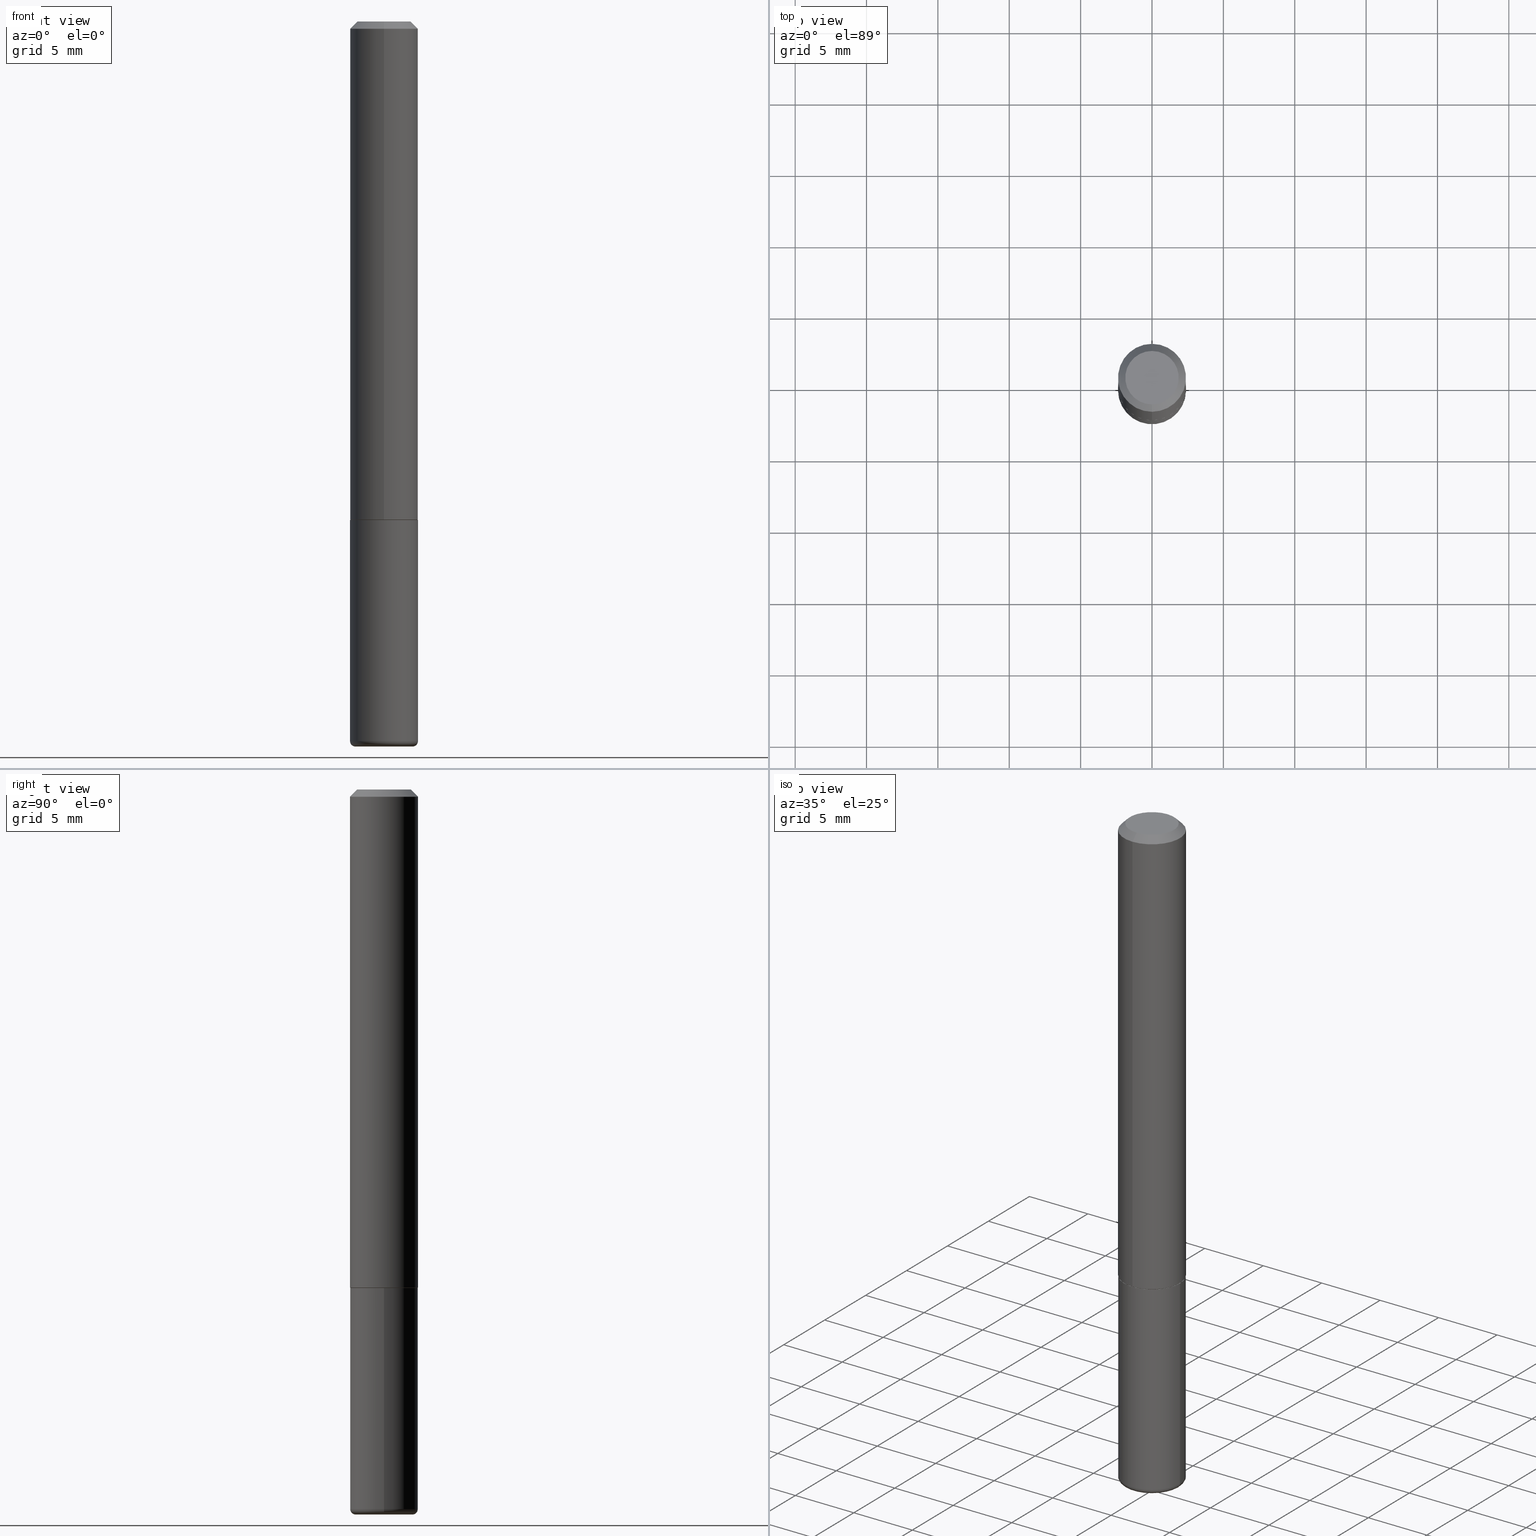
[diagram: canonical four-view strip — front | top / right | iso, engineering-drawing reading convention]
A machine part, canonical four-view strip (front | top / right | iso — engineering-drawing reading convention). The complete STEP part file that produces these views, byte-faithful:
ISO-10303-21;
HEADER;
FILE_DESCRIPTION (( 'STEP AP203' ),
    '1' );
FILE_NAME ('38209.STEP',
    '2024-03-02T18:19:08',
    ( '' ),
    ( '' ),
    'SwSTEP 2.0',
    'SolidWorks 2023',
    '' );
FILE_SCHEMA (( 'CONFIG_CONTROL_DESIGN' ));
ENDSEC;

DATA;
#1 = CARTESIAN_POINT ( 'NONE',  ( 3.362826918638701367E-29, -4.800346755306231649E-15, -1.375000000000000000 ) ) ;
#2 = DIRECTION ( 'NONE',  ( 2.445692304464510391E-29, -3.491161276586350254E-15, -1.000000000000000000 ) ) ;
#3 = CC_DESIGN_PERSON_AND_ORGANIZATION_ASSIGNMENT ( #154, #246, ( #200 ) ) ;
#4 = CARTESIAN_POINT ( 'NONE',  ( -6.546527510330881944E-16, -0.09375000000000011102, 3.272963696799707431E-16 ) ) ;
#5 = CIRCLE ( 'NONE', #244, 0.09375000000000019429 ) ;
#6 = AXIS2_PLACEMENT_3D ( 'NONE', #233, #351, #256 ) ;
#7 = ORIENTED_EDGE ( 'NONE', *, *, #334, .T. ) ;
#8 =( CONVERSION_BASED_UNIT ( 'INCH', #411 ) LENGTH_UNIT ( ) NAMED_UNIT ( #325 ) );
#9 = ADVANCED_BREP_SHAPE_REPRESENTATION ( '38209', ( #185, #39, #406 ), #196 ) ;
#10 = ORIENTED_EDGE ( 'NONE', *, *, #79, .T. ) ;
#11 = CC_DESIGN_PERSON_AND_ORGANIZATION_ASSIGNMENT ( #126, #229, ( #176 ) ) ;
#12 = CALENDAR_DATE ( 2024, 2, 3 ) ;
#13 = PERSON_AND_ORGANIZATION_ROLE ( 'design_owner' ) ;
#14 = CIRCLE ( 'NONE', #31, 0.09375000000000001388 ) ;
#15 = ORIENTED_EDGE ( 'NONE', *, *, #61, .T. ) ;
#16 = VERTEX_POINT ( 'NONE', #394 ) ;
#17 = COORDINATED_UNIVERSAL_TIME_OFFSET ( 5, 0, .BEHIND. ) ;
#18 = EDGE_LOOP ( 'NONE', ( #121, #321, #403, #155 ) ) ;
#19 = CARTESIAN_POINT ( 'NONE',  ( 0.000000000000000000, 0.000000000000000000, 0.000000000000000000 ) ) ;
#20 = CIRCLE ( 'NONE', #88, 0.07875000000000001443 ) ;
#21 = ORGANIZATION ( 'UNSPECIFIED', 'UNSPECIFIED', '' ) ;
#22 = PLANE ( 'NONE',  #279 ) ;
#23 = FACE_OUTER_BOUND ( 'NONE', #298, .T. ) ;
#24 = CARTESIAN_POINT ( 'NONE',  ( 3.362519608504562260E-29, -4.800786840909324930E-15, -1.375000000000000000 ) ) ;
#25 = DIRECTION ( 'NONE',  ( -6.982962677686265922E-15, -1.000000000000000000, 3.505871591869136910E-15 ) ) ;
#26 = ADVANCED_FACE ( 'NONE', ( #305 ), #22, .F. ) ;
#27 = PERSON_AND_ORGANIZATION_ROLE ( 'design_supplier' ) ;
#28 = CARTESIAN_POINT ( 'NONE',  ( 0.09374999999999991673, -7.585243208636731985E-15, -1.985000000000000098 ) ) ;
#29 = CC_DESIGN_PERSON_AND_ORGANIZATION_ASSIGNMENT ( #50, #13, ( #112 ) ) ;
#30 = DIRECTION ( 'NONE',  ( 7.105427357601001859E-15, 1.000000000000000000, -3.491481338843145583E-15 ) ) ;
#31 = AXIS2_PLACEMENT_3D ( 'NONE', #288, #379, #285 ) ;
#32 = DIRECTION ( 'NONE',  ( -2.445692304464510391E-29, 3.491161276586350254E-15, 1.000000000000000000 ) ) ;
#33 = VERTEX_POINT ( 'NONE', #91 ) ;
#34 = DATE_AND_TIME ( #12, #274 ) ;
#35 = CARTESIAN_POINT ( 'NONE',  ( 1.879681562415174393E-45, -2.683195866887273789E-31, -7.685682941324603213E-17 ) ) ;
#36 = CYLINDRICAL_SURFACE ( 'NONE', #320, 0.09375000000000001388 ) ;
#37 = EDGE_CURVE ( 'NONE', #343, #120, #296, .T. ) ;
#38 = FACE_OUTER_BOUND ( 'NONE', #111, .T. ) ;
#39 = MANIFOLD_SOLID_BREP ( 'Body-Move/Copy2[2]', #175 ) ;
#40 = APPROVAL_PERSON_ORGANIZATION ( #42, #174, #338 ) ;
#41 = EDGE_CURVE ( 'NONE', #132, #124, #387, .T. ) ;
#42 = PERSON_AND_ORGANIZATION ( #259, #21 ) ;
#43 = EDGE_CURVE ( 'NONE', #347, #269, #122, .T. ) ;
#44 = DIRECTION ( 'NONE',  ( -2.445468806185136877E-29, 3.491481338843145188E-15, 1.000000000000000000 ) ) ;
#45 = EDGE_LOOP ( 'NONE', ( #330, #56, #212, #294 ) ) ;
#46 = PRODUCT_DEFINITION_SHAPE ( 'NONE', 'NONE',  #200 ) ;
#47 = PRODUCT_DEFINITION_FORMATION_WITH_SPECIFIED_SOURCE ( 'ANY', '', #112, .NOT_KNOWN. ) ;
#48 = DIRECTION ( 'NONE',  ( -2.445692304464510111E-29, 3.491161276586350254E-15, 1.000000000000000000 ) ) ;
#49 = ADVANCED_FACE ( 'NONE', ( #136 ), #410, .T. ) ;
#50 = PERSON_AND_ORGANIZATION ( #259, #21 ) ;
#51 = FACE_OUTER_BOUND ( 'NONE', #218, .T. ) ;
#52 = LOCAL_TIME ( 13, 19, 8.000000000000000000, #377 ) ;
#53 = ORIENTED_EDGE ( 'NONE', *, *, #399, .T. ) ;
#54 = APPROVAL_STATUS ( 'not_yet_approved' ) ;
#55 = EDGE_CURVE ( 'NONE', #186, #192, #166, .T. ) ;
#56 = ORIENTED_EDGE ( 'NONE', *, *, #105, .T. ) ;
#57 = ORIENTED_EDGE ( 'NONE', *, *, #55, .F. ) ;
#58 = CALENDAR_DATE ( 2024, 2, 3 ) ;
#59 = DIRECTION ( 'NONE',  ( -2.445692304464510391E-29, 3.491161276586350254E-15, 1.000000000000000000 ) ) ;
#60 = CARTESIAN_POINT ( 'NONE',  ( 4.891384608929025126E-31, -6.982322553172705093E-17, -0.02000000000000001776 ) ) ;
#61 = EDGE_CURVE ( 'NONE', #202, #280, #80, .T. ) ;
#62 = CARTESIAN_POINT ( 'NONE',  ( 6.661338147750946145E-16, 0.09375000000000011102, -3.272963696799707431E-16 ) ) ;
#63 = DIRECTION ( 'NONE',  ( -2.445692304464510391E-29, 3.491161276586350254E-15, 1.000000000000000000 ) ) ;
#64 = ORIENTED_EDGE ( 'NONE', *, *, #213, .T. ) ;
#65 = LINE ( 'NONE', #385, #144 ) ;
#66 = CONICAL_SURFACE ( 'NONE', #150, 0.09375000000000002776, 0.7853981633974471688 ) ;
#67 = CARTESIAN_POINT ( 'NONE',  ( 1.879681562415174393E-45, -2.683195866887273789E-31, -7.685682941324603213E-17 ) ) ;
#68 = FACE_OUTER_BOUND ( 'NONE', #103, .T. ) ;
#69 = PERSON_AND_ORGANIZATION ( #259, #21 ) ;
#70 = DIRECTION ( 'NONE',  ( 1.000000000000000000, -6.982962677686277755E-15, 0.000000000000000000 ) ) ;
#71 = EDGE_CURVE ( 'NONE', #395, #16, #20, .T. ) ;
#72 = TOROIDAL_SURFACE ( 'NONE', #301, 0.07875000000000001443, 0.01499999999999984852 ) ;
#73 = EDGE_CURVE ( 'NONE', #280, #202, #130, .T. ) ;
#74 = DIRECTION ( 'NONE',  ( 1.000000000000000000, 0.000000000000000000, 0.000000000000000000 ) ) ;
#75 = APPROVAL_STATUS ( 'not_yet_approved' ) ;
#76 = ORIENTED_EDGE ( 'NONE', *, *, #73, .T. ) ;
#77 = APPROVAL_DATE_TIME ( #34, #174 ) ;
#78 = ORIENTED_EDGE ( 'NONE', *, *, #191, .T. ) ;
#79 = EDGE_CURVE ( 'NONE', #124, #132, #307, .T. ) ;
#80 = CIRCLE ( 'NONE', #350, 0.07375000000000013489 ) ;
#81 = LOCAL_TIME ( 13, 19, 8.000000000000000000, #17 ) ;
#82 = PLANE ( 'NONE',  #110 ) ;
#83 = PERSON_AND_ORGANIZATION ( #259, #21 ) ;
#84 = ORIENTED_EDGE ( 'NONE', *, *, #237, .F. ) ;
#85 = DIRECTION ( 'NONE',  ( 6.982962677686265922E-15, 1.000000000000000000, -3.491161276586350254E-15 ) ) ;
#86 = DATE_TIME_ROLE ( 'creation_date' ) ;
#87 = COORDINATED_UNIVERSAL_TIME_OFFSET ( 5, 0, .BEHIND. ) ;
#88 = AXIS2_PLACEMENT_3D ( 'NONE', #102, #170, #378 ) ;
#89 = AXIS2_PLACEMENT_3D ( 'NONE', #214, #142, #249 ) ;
#90 = DIRECTION ( 'NONE',  ( -2.445468806185136877E-29, 3.491481338843145188E-15, 1.000000000000000000 ) ) ;
#91 = CARTESIAN_POINT ( 'NONE',  ( -6.546527510330552594E-16, -0.09375000000000499600, -1.373999999999999666 ) ) ;
#92 =( LENGTH_UNIT ( ) NAMED_UNIT ( * ) SI_UNIT ( $, .METRE. ) );
#93 =( NAMED_UNIT ( * ) SI_UNIT ( $, .STERADIAN. ) SOLID_ANGLE_UNIT ( ) );
#94 = ORIENTED_EDGE ( 'NONE', *, *, #205, .T. ) ;
#95 = LINE ( 'NONE', #194, #398 ) ;
#96 = APPLICATION_CONTEXT ( 'configuration controlled 3d designs of mechanical parts and assemblies' ) ;
#97 = CARTESIAN_POINT ( 'NONE',  ( 4.854255580277496436E-29, -6.930590457603643692E-15, -1.985000000000000098 ) ) ;
#98 = ORIENTED_EDGE ( 'NONE', *, *, #37, .T. ) ;
#99 = CC_DESIGN_APPROVAL ( #174, ( #176 ) ) ;
#100 = CYLINDRICAL_SURFACE ( 'NONE', #123, 0.09375000000000001388 ) ;
#101 = EDGE_LOOP ( 'NONE', ( #156, #277, #53, #179 ) ) ;
#102 = CARTESIAN_POINT ( 'NONE',  ( 4.890937612370272633E-29, -6.982962677686290376E-15, -1.999999999999999778 ) ) ;
#103 = EDGE_LOOP ( 'NONE', ( #84, #199, #114, #375 ) ) ;
#104 = CARTESIAN_POINT ( 'NONE',  ( 0.000000000000000000, 0.000000000000000000, 0.000000000000000000 ) ) ;
#105 = EDGE_CURVE ( 'NONE', #395, #120, #319, .T. ) ;
#106 = AXIS2_PLACEMENT_3D ( 'NONE', #104, #163, #204 ) ;
#107 = CONICAL_SURFACE ( 'NONE', #219, 0.09274999999999999911, 0.7853981633975080090 ) ;
#108 = DIRECTION ( 'NONE',  ( -2.445468806185136597E-29, 3.491481338843145583E-15, 1.000000000000000000 ) ) ;
#109 = EDGE_CURVE ( 'NONE', #120, #343, #217, .T. ) ;
#110 = AXIS2_PLACEMENT_3D ( 'NONE', #306, #184, #85 ) ;
#111 = EDGE_LOOP ( 'NONE', ( #98, #317, #414, #221 ) ) ;
#112 = PRODUCT ( '38209', '38209', '', ( #400 ) ) ;
#113 = LINE ( 'NONE', #117, #360 ) ;
#114 = ORIENTED_EDGE ( 'NONE', *, *, #290, .T. ) ;
#115 = DIRECTION ( 'NONE',  ( 1.000000000000000000, -6.982962677686263555E-15, 4.883557194083111219E-29 ) ) ;
#116 = ADVANCED_FACE ( 'NONE', ( #323 ), #208, .T. ) ;
#117 = CARTESIAN_POINT ( 'NONE',  ( 0.09375000000000001388, -6.546527510330875041E-16, 4.571415727308690506E-30 ) ) ;
#118 = CC_DESIGN_APPROVAL ( #119, ( #200 ) ) ;
#119 = APPROVAL ( #337, 'UNSPECIFIED' ) ;
#120 = VERTEX_POINT ( 'NONE', #224 ) ;
#121 = ORIENTED_EDGE ( 'NONE', *, *, #183, .F. ) ;
#122 = CIRCLE ( 'NONE', #264, 0.09375000000000001388 ) ;
#123 = AXIS2_PLACEMENT_3D ( 'NONE', #206, #198, #324 ) ;
#124 = VERTEX_POINT ( 'NONE', #289 ) ;
#125 = DIRECTION ( 'NONE',  ( -6.982962677686265922E-15, -1.000000000000000000, 2.945388672414299892E-15 ) ) ;
#126 = PERSON_AND_ORGANIZATION ( #259, #21 ) ;
#127 = LINE ( 'NONE', #62, #340 ) ;
#128 = ORIENTED_EDGE ( 'NONE', *, *, #151, .F. ) ;
#129 = DIRECTION ( 'NONE',  ( 6.982962677686265922E-15, 1.000000000000000000, -3.505871591869136910E-15 ) ) ;
#130 = CIRCLE ( 'NONE', #367, 0.07375000000000013489 ) ;
#131 = CARTESIAN_POINT ( 'NONE',  ( 4.891384608929025126E-31, -6.982322553172705093E-17, -0.02000000000000001776 ) ) ;
#132 = VERTEX_POINT ( 'NONE', #230 ) ;
#133 = DIRECTION ( 'NONE',  ( -6.982962677686265922E-15, -1.000000000000000000, 3.491161276586350254E-15 ) ) ;
#134 = LINE ( 'NONE', #211, #271 ) ;
#135 = CARTESIAN_POINT ( 'NONE',  ( -5.745667073133659498E-16, -0.07375000000000013489, 1.806163147349977463E-16 ) ) ;
#136 = FACE_OUTER_BOUND ( 'NONE', #273, .T. ) ;
#137 = AXIS2_PLACEMENT_3D ( 'NONE', #141, #329, #299 ) ;
#138 = DIRECTION ( 'NONE',  ( 0.000000000000000000, 0.000000000000000000, 1.000000000000000000 ) ) ;
#139 = CARTESIAN_POINT ( 'NONE',  ( 9.735735728146696182E-29, -4.493602711038002427E-17, -2.000000000000000000 ) ) ;
#140 = ADVANCED_FACE ( 'NONE', ( #201 ), #66, .T. ) ;
#141 = CARTESIAN_POINT ( 'NONE',  ( 3.362826918638701367E-29, -4.800346755306231649E-15, -1.375000000000000000 ) ) ;
#142 = DIRECTION ( 'NONE',  ( -2.445692304464510391E-29, 3.491161276586350254E-15, 1.000000000000000000 ) ) ;
#143 = DESIGN_CONTEXT ( 'detailed design', #96, 'design' ) ;
#144 = VECTOR ( 'NONE', #355, 39.37007874015748143 ) ;
#145 = ORIENTED_EDGE ( 'NONE', *, *, #334, .F. ) ;
#146 = DIRECTION ( 'NONE',  ( 1.000000000000000000, -6.982962677686263555E-15, 4.883557194083111219E-29 ) ) ;
#147 = DIRECTION ( 'NONE',  ( -4.937700262164843076E-15, -0.7071067811865873187, 0.7071067811865077157 ) ) ;
#148 = DIRECTION ( 'NONE',  ( -2.445468806185136597E-29, 3.491481338843145583E-15, 1.000000000000000000 ) ) ;
#149 = AXIS2_PLACEMENT_3D ( 'NONE', #131, #227, #353 ) ;
#150 = AXIS2_PLACEMENT_3D ( 'NONE', #386, #2, #129 ) ;
#151 = EDGE_CURVE ( 'NONE', #16, #395, #209, .T. ) ;
#152 = DIRECTION ( 'NONE',  ( -6.982962677686265922E-15, -1.000000000000000000, 3.491161276586350254E-15 ) ) ;
#153 = DIRECTION ( 'NONE',  ( -1.000000000000000000, 6.982962677686265922E-15, -4.876176775795935793E-29 ) ) ;
#154 = PERSON_AND_ORGANIZATION ( #259, #21 ) ;
#155 = ORIENTED_EDGE ( 'NONE', *, *, #245, .F. ) ;
#156 = ORIENTED_EDGE ( 'NONE', *, *, #105, .F. ) ;
#157 = EDGE_CURVE ( 'NONE', #269, #347, #14, .T. ) ;
#158 = DIRECTION ( 'NONE',  ( -6.982962677686265922E-15, -1.000000000000000000, 3.491161276586350648E-15 ) ) ;
#159 = TOROIDAL_SURFACE ( 'NONE', #203, 0.07875000000000001443, 0.01499999999999984852 ) ;
#160 = CARTESIAN_POINT ( 'NONE',  ( 5.848231242562254878E-16, 0.07375000000000013489, -3.343299735614898105E-16 ) ) ;
#161 = SECURITY_CLASSIFICATION_LEVEL ( 'unclassified' ) ;
#162 = DIRECTION ( 'NONE',  ( -2.445692304464510391E-29, 3.491161276586350254E-15, 1.000000000000000000 ) ) ;
#163 = DIRECTION ( 'NONE',  ( -2.445692304464510391E-29, 3.491161276586350254E-15, 1.000000000000000000 ) ) ;
#164 = DATE_AND_TIME ( #253, #225 ) ;
#165 = DIRECTION ( 'NONE',  ( -1.000000000000000000, 7.105427357601001859E-15, 0.000000000000000000 ) ) ;
#166 = CIRCLE ( 'NONE', #358, 0.09274999999999999911 ) ;
#167 = CIRCLE ( 'NONE', #137, 0.09274999999999999911 ) ;
#168 = ADVANCED_FACE ( 'NONE', ( #68 ), #100, .T. ) ;
#169 = DIRECTION ( 'NONE',  ( -2.445468806185136597E-29, 3.491481338843145583E-15, 1.000000000000000000 ) ) ;
#170 = DIRECTION ( 'NONE',  ( -2.445468806185136597E-29, 3.491481338843145583E-15, 1.000000000000000000 ) ) ;
#171 = CARTESIAN_POINT ( 'NONE',  ( 0.000000000000000000, 0.000000000000000000, 0.000000000000000000 ) ) ;
#172 = DIRECTION ( 'NONE',  ( 2.438088387897960049E-29, -3.491481338843145188E-15, -1.000000000000000000 ) ) ;
#173 = CARTESIAN_POINT ( 'NONE',  ( -0.07875000000000001443, -6.343933458051881854E-15, -1.999999999999999778 ) ) ;
#174 = APPROVAL ( #75, 'UNSPECIFIED' ) ;
#175 = CLOSED_SHELL ( 'NONE', ( #335, #49, #116, #140, #322, #310, #26, #415 ) ) ;
#176 = SECURITY_CLASSIFICATION ( '', '', #161 ) ;
#177 = DIRECTION ( 'NONE',  ( 2.438088387897960049E-29, -3.491481338843145188E-15, -1.000000000000000000 ) ) ;
#178 = DIRECTION ( 'NONE',  ( -2.445692304464510391E-29, 3.491161276586350254E-15, 1.000000000000000000 ) ) ;
#179 = ORIENTED_EDGE ( 'NONE', *, *, #109, .F. ) ;
#180 = ORIENTED_EDGE ( 'NONE', *, *, #79, .F. ) ;
#181 = PLANE ( 'NONE',  #232 ) ;
#182 = FACE_OUTER_BOUND ( 'NONE', #18, .T. ) ;
#183 = EDGE_CURVE ( 'NONE', #186, #314, #316, .T. ) ;
#184 = DIRECTION ( 'NONE',  ( 2.445692304464510111E-29, -3.491161276586350254E-15, -1.000000000000000000 ) ) ;
#185 = MANIFOLD_SOLID_BREP ( 'Body-Move/Copy2[1]', #195 ) ;
#186 = VERTEX_POINT ( 'NONE', #260 ) ;
#187 = APPROVAL_ROLE ( '' ) ;
#188 = ORIENTED_EDGE ( 'NONE', *, *, #205, .F. ) ;
#189 = CYLINDRICAL_SURFACE ( 'NONE', #333, 0.09375000000000011102 ) ;
#190 = DIRECTION ( 'NONE',  ( -6.982962677686266711E-15, -1.000000000000000000, 2.913971193241874850E-15 ) ) ;
#191 = EDGE_CURVE ( 'NONE', #202, #132, #65, .T. ) ;
#192 = VERTEX_POINT ( 'NONE', #318 ) ;
#193 = DATE_AND_TIME ( #58, #81 ) ;
#194 = CARTESIAN_POINT ( 'NONE',  ( -6.431716872910806895E-16, -0.09375000000000009714, -0.01999999999999968817 ) ) ;
#195 = CLOSED_SHELL ( 'NONE', ( #389, #409, #255, #168, #242, #369 ) ) ;
#196 =( GEOMETRIC_REPRESENTATION_CONTEXT ( 3 ) GLOBAL_UNCERTAINTY_ASSIGNED_CONTEXT ( ( #226 ) ) GLOBAL_UNIT_ASSIGNED_CONTEXT ( ( #8, #241, #93 ) ) REPRESENTATION_CONTEXT ( 'NONE', 'WORKASPACE' ) );
#197 = DIRECTION ( 'NONE',  ( -6.982962677686265922E-15, -1.000000000000000000, 3.491161276586350254E-15 ) ) ;
#198 = DIRECTION ( 'NONE',  ( -2.445468806185136597E-29, 3.491481338843145583E-15, 1.000000000000000000 ) ) ;
#199 = ORIENTED_EDGE ( 'NONE', *, *, #109, .T. ) ;
#200 = PRODUCT_DEFINITION ( 'UNKNOWN', '', #47, #143 ) ;
#201 = FACE_OUTER_BOUND ( 'NONE', #287, .T. ) ;
#202 = VERTEX_POINT ( 'NONE', #160 ) ;
#203 = AXIS2_PLACEMENT_3D ( 'NONE', #215, #372, #115 ) ;
#204 = DIRECTION ( 'NONE',  ( -6.982962677686265922E-15, -1.000000000000000000, 3.491161276586350648E-15 ) ) ;
#205 = EDGE_CURVE ( 'NONE', #33, #314, #5, .T. ) ;
#206 = CARTESIAN_POINT ( 'NONE',  ( 0.000000000000000000, 0.000000000000000000, 0.000000000000000000 ) ) ;
#207 = CARTESIAN_POINT ( 'NONE',  ( 0.000000000000000000, 0.000000000000000000, 0.000000000000000000 ) ) ;
#208 = CONICAL_SURFACE ( 'NONE', #6, 0.09375000000000002776, 0.7853981633974471688 ) ;
#209 = CIRCLE ( 'NONE', #388, 0.07875000000000001443 ) ;
#210 = ORIENTED_EDGE ( 'NONE', *, *, #73, .F. ) ;
#211 = CARTESIAN_POINT ( 'NONE',  ( -0.09375000000000001388, 6.661338147750940229E-16, -4.611501647113973995E-30 ) ) ;
#212 = ORIENTED_EDGE ( 'NONE', *, *, #37, .F. ) ;
#213 = EDGE_CURVE ( 'NONE', #33, #124, #272, .T. ) ;
#214 = CARTESIAN_POINT ( 'NONE',  ( 3.362826918638701367E-29, -4.800346755306231649E-15, -1.375000000000000000 ) ) ;
#215 = CARTESIAN_POINT ( 'NONE',  ( 4.854255580277496436E-29, -6.930590457603643692E-15, -1.985000000000000098 ) ) ;
#216 = APPLICATION_PROTOCOL_DEFINITION ( 'international standard', 'config_control_design', 1994, #370 ) ;
#217 = CIRCLE ( 'NONE', #397, 0.09375000000000001388 ) ;
#218 = EDGE_LOOP ( 'NONE', ( #128, #251 ) ) ;
#219 = AXIS2_PLACEMENT_3D ( 'NONE', #257, #162, #412 ) ;
#220 = DATE_AND_TIME ( #402, #352 ) ;
#221 = ORIENTED_EDGE ( 'NONE', *, *, #290, .F. ) ;
#222 = ORIENTED_EDGE ( 'NONE', *, *, #43, .T. ) ;
#223 = APPLICATION_PROTOCOL_DEFINITION ( 'international standard', 'config_control_design', 1994, #96 ) ;
#224 = CARTESIAN_POINT ( 'NONE',  ( -0.09374999999999991673, -6.264456642828550556E-15, -1.985000000000000098 ) ) ;
#225 = LOCAL_TIME ( 13, 19, 8.000000000000000000, #383 ) ;
#226 = UNCERTAINTY_MEASURE_WITH_UNIT (LENGTH_MEASURE( 1.000000000000000082E-05 ), #8, 'distance_accuracy_value', 'NONE');
#227 = DIRECTION ( 'NONE',  ( -2.445692304464510391E-29, 3.491161276586350254E-15, 1.000000000000000000 ) ) ;
#228 = EDGE_CURVE ( 'NONE', #192, #186, #167, .T. ) ;
#229 = PERSON_AND_ORGANIZATION_ROLE ( 'classification_officer' ) ;
#230 = CARTESIAN_POINT ( 'NONE',  ( 6.546527510330880958E-16, 0.09374999999999995837, -0.02000000000000034736 ) ) ;
#231 = DIRECTION ( 'NONE',  ( -2.445468806185136597E-29, 3.491481338843145583E-15, 1.000000000000000000 ) ) ;
#232 = AXIS2_PLACEMENT_3D ( 'NONE', #24, #172, #153 ) ;
#233 = CARTESIAN_POINT ( 'NONE',  ( 4.891384608929025126E-31, -6.982322553172705093E-17, -0.02000000000000001776 ) ) ;
#234 = DIRECTION ( 'NONE',  ( -2.445468806185136597E-29, 3.491481338843145583E-15, 1.000000000000000000 ) ) ;
#235 = VECTOR ( 'NONE', #416, 39.37007874015748143 ) ;
#236 = VECTOR ( 'NONE', #147, 39.37007874015748143 ) ;
#237 = EDGE_CURVE ( 'NONE', #120, #269, #134, .T. ) ;
#238 = ORIENTED_EDGE ( 'NONE', *, *, #191, .F. ) ;
#239 = CARTESIAN_POINT ( 'NONE',  ( 3.362826918638701367E-29, -4.800346755306231649E-15, -1.375000000000000000 ) ) ;
#240 = DIRECTION ( 'NONE',  ( -6.982962677686266711E-15, -1.000000000000000000, 2.913971193241874850E-15 ) ) ;
#241 =( NAMED_UNIT ( * ) PLANE_ANGLE_UNIT ( ) SI_UNIT ( $, .RADIAN. ) );
#242 = ADVANCED_FACE ( 'NONE', ( #331 ), #72, .T. ) ;
#243 = AXIS2_PLACEMENT_3D ( 'NONE', #341, #401, #248 ) ;
#244 = AXIS2_PLACEMENT_3D ( 'NONE', #282, #178, #240 ) ;
#245 = EDGE_CURVE ( 'NONE', #314, #33, #417, .T. ) ;
#246 = PERSON_AND_ORGANIZATION_ROLE ( 'creator' ) ;
#247 = ORIENTED_EDGE ( 'NONE', *, *, #41, .F. ) ;
#248 = DIRECTION ( 'NONE',  ( 1.000000000000000000, -6.982962677686261189E-15, 0.000000000000000000 ) ) ;
#249 = DIRECTION ( 'NONE',  ( -6.982962677686265922E-15, -1.000000000000000000, 2.945388672414299892E-15 ) ) ;
#250 = CC_DESIGN_PERSON_AND_ORGANIZATION_ASSIGNMENT ( #83, #362, ( #47 ) ) ;
#251 = ORIENTED_EDGE ( 'NONE', *, *, #71, .F. ) ;
#252 = DIRECTION ( 'NONE',  ( 1.000000000000000000, -6.982962677686261189E-15, 0.000000000000000000 ) ) ;
#253 = CALENDAR_DATE ( 2024, 2, 3 ) ;
#254 = ORIENTED_EDGE ( 'NONE', *, *, #228, .T. ) ;
#255 = ADVANCED_FACE ( 'NONE', ( #295 ), #181, .F. ) ;
#256 = DIRECTION ( 'NONE',  ( 6.982962677686265922E-15, 1.000000000000000000, -3.505871591869136910E-15 ) ) ;
#257 = CARTESIAN_POINT ( 'NONE',  ( 3.362826918638701367E-29, -4.800346755306231649E-15, -1.375000000000000000 ) ) ;
#258 = ORIENTED_EDGE ( 'NONE', *, *, #267, .F. ) ;
#259 = PERSON ( 'UNSPECIFIED', 'UNSPECIFIED', 'UNSPECIFIED', ('UNSPECIFIED'), ('UNSPECIFIED'), ('UNSPECIFIED') ) ;
#260 = CARTESIAN_POINT ( 'NONE',  ( 6.625811010963275384E-16, 0.09274999999999521128, -1.375000000000000222 ) ) ;
#261 = ORIENTED_EDGE ( 'NONE', *, *, #41, .T. ) ;
#262 = CARTESIAN_POINT ( 'NONE',  ( 6.590283874175264427E-16, 0.09274999999999521128, -1.375000000000000222 ) ) ;
#263 = CARTESIAN_POINT ( 'NONE',  ( 3.362519608504562260E-29, -4.800786840909324930E-15, -1.375000000000000000 ) ) ;
#264 = AXIS2_PLACEMENT_3D ( 'NONE', #263, #108, #252 ) ;
#265 = CC_DESIGN_DATE_AND_TIME_ASSIGNMENT ( #220, #86, ( #200 ) ) ;
#266 = APPROVAL_PERSON_ORGANIZATION ( #342, #382, #187 ) ;
#267 = EDGE_CURVE ( 'NONE', #192, #33, #278, .T. ) ;
#268 = CARTESIAN_POINT ( 'NONE',  ( 4.854255580277496436E-29, -6.930590457603643692E-15, -1.985000000000000098 ) ) ;
#269 = VERTEX_POINT ( 'NONE', #315 ) ;
#270 = AXIS2_PLACEMENT_3D ( 'NONE', #60, #32, #25 ) ;
#271 = VECTOR ( 'NONE', #90, 39.37007874015748143 ) ;
#272 = LINE ( 'NONE', #4, #291 ) ;
#273 = EDGE_LOOP ( 'NONE', ( #94, #365, #180, #354 ) ) ;
#274 = LOCAL_TIME ( 13, 19, 8.000000000000000000, #87 ) ;
#275 = ORIENTED_EDGE ( 'NONE', *, *, #228, .F. ) ;
#276 = COORDINATED_UNIVERSAL_TIME_OFFSET ( 5, 0, .BEHIND. ) ;
#277 = ORIENTED_EDGE ( 'NONE', *, *, #71, .T. ) ;
#278 = LINE ( 'NONE', #293, #236 ) ;
#279 = AXIS2_PLACEMENT_3D ( 'NONE', #239, #48, #152 ) ;
#280 = VERTEX_POINT ( 'NONE', #135 ) ;
#281 = CONICAL_SURFACE ( 'NONE', #89, 0.09274999999999999911, 0.7853981633975080090 ) ;
#282 = CARTESIAN_POINT ( 'NONE',  ( 3.360381226334237203E-29, -4.796855594029644698E-15, -1.373999999999999888 ) ) ;
#283 = DIRECTION ( 'NONE',  ( 1.000000000000000000, -6.982962677686261189E-15, 0.000000000000000000 ) ) ;
#284 = EDGE_LOOP ( 'NONE', ( #15, #76 ) ) ;
#285 = DIRECTION ( 'NONE',  ( 1.000000000000000000, -6.982962677686261189E-15, 0.000000000000000000 ) ) ;
#286 = CIRCLE ( 'NONE', #374, 0.01499999999999983985 ) ;
#287 = EDGE_LOOP ( 'NONE', ( #145, #376, #78, #261 ) ) ;
#288 = CARTESIAN_POINT ( 'NONE',  ( 3.362519608504562260E-29, -4.800786840909324930E-15, -1.375000000000000000 ) ) ;
#289 = CARTESIAN_POINT ( 'NONE',  ( -6.431716872910806895E-16, -0.09375000000000009714, -0.01999999999999968817 ) ) ;
#290 = EDGE_CURVE ( 'NONE', #343, #347, #113, .T. ) ;
#291 = VECTOR ( 'NONE', #390, 39.37007874015748143 ) ;
#292 = DIRECTION ( 'NONE',  ( -1.000000000000000000, 6.982962677686265922E-15, -4.876176775795935793E-29 ) ) ;
#293 = CARTESIAN_POINT ( 'NONE',  ( -6.476697883553675688E-16, -0.09275000000000480083, -1.374999999999999778 ) ) ;
#294 = ORIENTED_EDGE ( 'NONE', *, *, #399, .F. ) ;
#295 = FACE_OUTER_BOUND ( 'NONE', #308, .T. ) ;
#296 = CIRCLE ( 'NONE', #243, 0.09375000000000001388 ) ;
#297 = APPROVAL_PERSON_ORGANIZATION ( #344, #119, #408 ) ;
#298 = EDGE_LOOP ( 'NONE', ( #254, #407, #188, #258 ) ) ;
#299 = DIRECTION ( 'NONE',  ( -6.982962677686265922E-15, -1.000000000000000000, 2.945388672414299892E-15 ) ) ;
#300 = CALENDAR_DATE ( 2024, 2, 3 ) ;
#301 = AXIS2_PLACEMENT_3D ( 'NONE', #268, #148, #146 ) ;
#302 = PRODUCT_RELATED_PRODUCT_CATEGORY ( 'detail', '', ( #112 ) ) ;
#303 = EDGE_LOOP ( 'NONE', ( #210, #7, #10, #238 ) ) ;
#304 = DATE_AND_TIME ( #300, #52 ) ;
#305 = FACE_OUTER_BOUND ( 'NONE', #418, .T. ) ;
#306 = CARTESIAN_POINT ( 'NONE',  ( 5.149934974793630771E-16, 0.07375000000000013489, -2.959015588548668315E-16 ) ) ;
#307 = CIRCLE ( 'NONE', #149, 0.09375000000000002776 ) ;
#308 = EDGE_LOOP ( 'NONE', ( #222, #332 ) ) ;
#309 = CC_DESIGN_APPROVAL ( #382, ( #47 ) ) ;
#310 = ADVANCED_FACE ( 'NONE', ( #182 ), #281, .T. ) ;
#311 = DIRECTION ( 'NONE',  ( -4.851104656540957964E-15, -0.7071067811865491270, -0.7071067811865459074 ) ) ;
#312 = DIRECTION ( 'NONE',  ( 1.000000000000000000, -6.982962677686261189E-15, 0.000000000000000000 ) ) ;
#313 = DIRECTION ( 'NONE',  ( -2.445692304464510391E-29, 3.491161276586350254E-15, 1.000000000000000000 ) ) ;
#314 = VERTEX_POINT ( 'NONE', #349 ) ;
#315 = CARTESIAN_POINT ( 'NONE',  ( -0.09375000000000001388, -5.199554834481389992E-15, -1.375000000000000000 ) ) ;
#316 = LINE ( 'NONE', #262, #235 ) ;
#317 = ORIENTED_EDGE ( 'NONE', *, *, #237, .T. ) ;
#318 = CARTESIAN_POINT ( 'NONE',  ( -6.476697883553675688E-16, -0.09275000000000480083, -1.374999999999999778 ) ) ;
#319 = CIRCLE ( 'NONE', #392, 0.01499999999999983985 ) ;
#320 = AXIS2_PLACEMENT_3D ( 'NONE', #171, #234, #363 ) ;
#321 = ORIENTED_EDGE ( 'NONE', *, *, #55, .T. ) ;
#322 = ADVANCED_FACE ( 'NONE', ( #345 ), #189, .T. ) ;
#323 = FACE_OUTER_BOUND ( 'NONE', #303, .T. ) ;
#324 = DIRECTION ( 'NONE',  ( 1.000000000000000000, -6.982962677686265922E-15, 4.876176775795935793E-29 ) ) ;
#325 = DIMENSIONAL_EXPONENTS ( 1.000000000000000000, 0.000000000000000000, 0.000000000000000000, 0.000000000000000000, 0.000000000000000000, 0.000000000000000000, 0.000000000000000000 ) ;
#326 = CARTESIAN_POINT ( 'NONE',  ( 0.07875000000000001443, -7.480498768471437037E-15, -1.985000000000000098 ) ) ;
#327 = CC_DESIGN_PERSON_AND_ORGANIZATION_ASSIGNMENT ( #69, #27, ( #47 ) ) ;
#328 = CC_DESIGN_SECURITY_CLASSIFICATION ( #176, ( #47 ) ) ;
#329 = DIRECTION ( 'NONE',  ( -2.445692304464510391E-29, 3.491161276586350254E-15, 1.000000000000000000 ) ) ;
#330 = ORIENTED_EDGE ( 'NONE', *, *, #151, .T. ) ;
#331 = FACE_OUTER_BOUND ( 'NONE', #101, .T. ) ;
#332 = ORIENTED_EDGE ( 'NONE', *, *, #157, .T. ) ;
#333 = AXIS2_PLACEMENT_3D ( 'NONE', #19, #59, #158 ) ;
#334 = EDGE_CURVE ( 'NONE', #280, #124, #95, .T. ) ;
#335 = ADVANCED_FACE ( 'NONE', ( #23 ), #107, .T. ) ;
#336 = FACE_OUTER_BOUND ( 'NONE', #284, .T. ) ;
#337 = APPROVAL_STATUS ( 'not_yet_approved' ) ;
#338 = APPROVAL_ROLE ( '' ) ;
#339 = EDGE_CURVE ( 'NONE', #314, #132, #127, .T. ) ;
#340 = VECTOR ( 'NONE', #313, 39.37007874015748143 ) ;
#341 = CARTESIAN_POINT ( 'NONE',  ( 4.854255580277496436E-29, -6.930590457603643692E-15, -1.985000000000000098 ) ) ;
#342 = PERSON_AND_ORGANIZATION ( #259, #21 ) ;
#343 = VERTEX_POINT ( 'NONE', #28 ) ;
#344 = PERSON_AND_ORGANIZATION ( #259, #21 ) ;
#345 = FACE_OUTER_BOUND ( 'NONE', #371, .T. ) ;
#346 = CC_DESIGN_DATE_AND_TIME_ASSIGNMENT ( #164, #356, ( #176 ) ) ;
#347 = VERTEX_POINT ( 'NONE', #380 ) ;
#348 = APPROVAL_DATE_TIME ( #304, #119 ) ;
#349 = CARTESIAN_POINT ( 'NONE',  ( 6.661338147751117722E-16, 0.09374999999999537870, -1.374000000000000110 ) ) ;
#350 = AXIS2_PLACEMENT_3D ( 'NONE', #35, #381, #197 ) ;
#351 = DIRECTION ( 'NONE',  ( 2.445692304464510391E-29, -3.491161276586350254E-15, -1.000000000000000000 ) ) ;
#352 = LOCAL_TIME ( 13, 19, 8.000000000000000000, #276 ) ;
#353 = DIRECTION ( 'NONE',  ( -6.982962677686265922E-15, -1.000000000000000000, 3.505871591869136910E-15 ) ) ;
#354 = ORIENTED_EDGE ( 'NONE', *, *, #213, .F. ) ;
#355 = DIRECTION ( 'NONE',  ( 4.937700262164541731E-15, 0.7071067811865442421, -0.7071067811865507924 ) ) ;
#356 = DATE_TIME_ROLE ( 'classification_date' ) ;
#357 = CARTESIAN_POINT ( 'NONE',  ( -0.07875000000000001443, -6.371038053192564890E-15, -1.985000000000000098 ) ) ;
#358 = AXIS2_PLACEMENT_3D ( 'NONE', #1, #63, #125 ) ;
#359 = PLANE ( 'NONE',  #364 ) ;
#360 = VECTOR ( 'NONE', #44, 39.37007874015748143 ) ;
#361 = DIRECTION ( 'NONE',  ( -2.445692304464510391E-29, 3.491161276586350254E-15, 1.000000000000000000 ) ) ;
#362 = PERSON_AND_ORGANIZATION_ROLE ( 'creator' ) ;
#363 = DIRECTION ( 'NONE',  ( 1.000000000000000000, -6.982962677686265922E-15, 4.876176775795935793E-29 ) ) ;
#364 = AXIS2_PLACEMENT_3D ( 'NONE', #139, #177, #292 ) ;
#365 = ORIENTED_EDGE ( 'NONE', *, *, #339, .T. ) ;
#366 = ORIENTED_EDGE ( 'NONE', *, *, #339, .F. ) ;
#367 = AXIS2_PLACEMENT_3D ( 'NONE', #67, #361, #133 ) ;
#368 = APPROVAL_DATE_TIME ( #193, #382 ) ;
#369 = ADVANCED_FACE ( 'NONE', ( #51 ), #359, .T. ) ;
#370 = APPLICATION_CONTEXT ( 'configuration controlled 3d designs of mechanical parts and assemblies' ) ;
#371 = EDGE_LOOP ( 'NONE', ( #366, #384, #64, #247 ) ) ;
#372 = DIRECTION ( 'NONE',  ( -2.445468806185136597E-29, 3.491481338843145583E-15, 1.000000000000000000 ) ) ;
#373 = SHAPE_DEFINITION_REPRESENTATION ( #46, #9 ) ;
#374 = AXIS2_PLACEMENT_3D ( 'NONE', #326, #391, #70 ) ;
#375 = ORIENTED_EDGE ( 'NONE', *, *, #157, .F. ) ;
#376 = ORIENTED_EDGE ( 'NONE', *, *, #61, .F. ) ;
#377 = COORDINATED_UNIVERSAL_TIME_OFFSET ( 5, 0, .BEHIND. ) ;
#378 = DIRECTION ( 'NONE',  ( 1.000000000000000000, -6.982962677686261189E-15, 0.000000000000000000 ) ) ;
#379 = DIRECTION ( 'NONE',  ( -2.445468806185136597E-29, 3.491481338843145583E-15, 1.000000000000000000 ) ) ;
#380 = CARTESIAN_POINT ( 'NONE',  ( 0.09375000000000001388, -5.455439591942412434E-15, -1.375000000000000000 ) ) ;
#381 = DIRECTION ( 'NONE',  ( -2.445692304464510391E-29, 3.491161276586350254E-15, 1.000000000000000000 ) ) ;
#382 = APPROVAL ( #54, 'UNSPECIFIED' ) ;
#383 = COORDINATED_UNIVERSAL_TIME_OFFSET ( 5, 0, .BEHIND. ) ;
#384 = ORIENTED_EDGE ( 'NONE', *, *, #245, .T. ) ;
#385 = CARTESIAN_POINT ( 'NONE',  ( 6.546527510330880958E-16, 0.09374999999999995837, -0.02000000000000034736 ) ) ;
#386 = CARTESIAN_POINT ( 'NONE',  ( 4.891384608929025126E-31, -6.982322553172705093E-17, -0.02000000000000001776 ) ) ;
#387 = CIRCLE ( 'NONE', #270, 0.09375000000000002776 ) ;
#388 = AXIS2_PLACEMENT_3D ( 'NONE', #413, #169, #312 ) ;
#389 = ADVANCED_FACE ( 'NONE', ( #38 ), #36, .T. ) ;
#390 = DIRECTION ( 'NONE',  ( -2.445692304464510391E-29, 3.491161276586350254E-15, 1.000000000000000000 ) ) ;
#391 = DIRECTION ( 'NONE',  ( -6.982962677686266711E-15, -1.000000000000000000, 3.491481338843145583E-15 ) ) ;
#392 = AXIS2_PLACEMENT_3D ( 'NONE', #357, #30, #165 ) ;
#393 = AXIS2_PLACEMENT_3D ( 'NONE', #404, #405, #190 ) ;
#394 = CARTESIAN_POINT ( 'NONE',  ( 0.07875000000000001443, -7.532870988554083722E-15, -1.999999999999999778 ) ) ;
#395 = VERTEX_POINT ( 'NONE', #173 ) ;
#396 = FACE_OUTER_BOUND ( 'NONE', #45, .T. ) ;
#397 = AXIS2_PLACEMENT_3D ( 'NONE', #97, #231, #283 ) ;
#398 = VECTOR ( 'NONE', #311, 39.37007874015748143 ) ;
#399 = EDGE_CURVE ( 'NONE', #16, #343, #286, .T. ) ;
#400 = MECHANICAL_CONTEXT ( 'NONE', #370, 'mechanical' ) ;
#401 = DIRECTION ( 'NONE',  ( -2.445468806185136597E-29, 3.491481338843145583E-15, 1.000000000000000000 ) ) ;
#402 = CALENDAR_DATE ( 2024, 2, 3 ) ;
#403 = ORIENTED_EDGE ( 'NONE', *, *, #267, .T. ) ;
#404 = CARTESIAN_POINT ( 'NONE',  ( 3.360381226334237203E-29, -4.796855594029644698E-15, -1.373999999999999888 ) ) ;
#405 = DIRECTION ( 'NONE',  ( -2.445692304464510391E-29, 3.491161276586350254E-15, 1.000000000000000000 ) ) ;
#406 = AXIS2_PLACEMENT_3D ( 'NONE', #207, #138, #74 ) ;
#407 = ORIENTED_EDGE ( 'NONE', *, *, #183, .T. ) ;
#408 = APPROVAL_ROLE ( '' ) ;
#409 = ADVANCED_FACE ( 'NONE', ( #396 ), #159, .T. ) ;
#410 = CYLINDRICAL_SURFACE ( 'NONE', #106, 0.09375000000000011102 ) ;
#411 = LENGTH_MEASURE_WITH_UNIT ( LENGTH_MEASURE( 0.02539999999999999897 ), #92 );
#412 = DIRECTION ( 'NONE',  ( -6.982962677686265922E-15, -1.000000000000000000, 2.945388672414299892E-15 ) ) ;
#413 = CARTESIAN_POINT ( 'NONE',  ( 4.890937612370272633E-29, -6.982962677686290376E-15, -1.999999999999999778 ) ) ;
#414 = ORIENTED_EDGE ( 'NONE', *, *, #43, .F. ) ;
#415 = ADVANCED_FACE ( 'NONE', ( #336 ), #82, .F. ) ;
#416 = DIRECTION ( 'NONE',  ( 5.024295867788362157E-15, 0.7071067811865922037, 0.7071067811865028307 ) ) ;
#417 = CIRCLE ( 'NONE', #393, 0.09375000000000019429 ) ;
#418 = EDGE_LOOP ( 'NONE', ( #275, #57 ) ) ;
ENDSEC;
END-ISO-10303-21;
